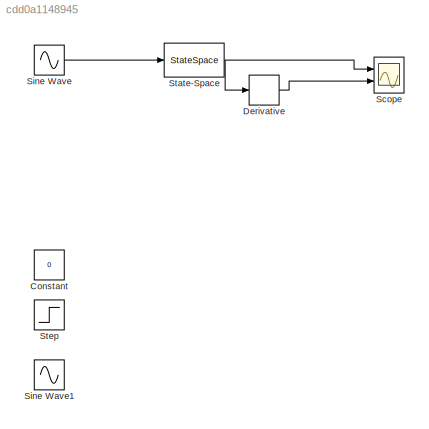
MODEL slx_cdd0a1148945
KIND model
BLOCK [Constant] Constant
  Value = 0
BLOCK [Derivative] Derivative
BLOCK [Scope] Scope
  DataFormat = StructureWithTime
  Floating = off
  LimitDataPoints = off
  NumInputPorts = 2
  Ports = [2]
  SampleTime = 0
  ShowLegends = off
  YMax = 5~5
  YMin = -5~-5
BLOCK [Sin] Sine Wave
  Amplitude = 2
  Phase = pi/2
  Ports = [0, 1]
  SampleTime = 0
BLOCK [Sin] Sine Wave1
  Amplitude = 2
  Frequency = 8*pi
  Phase = pi/2
  Ports = [0, 1]
  SampleTime = 0
BLOCK [StateSpace] State-Space
  A = [0 1; -k/m -b/m]
  B = [0;1/m]
  C = [1 0]
  D = 0
  X0 = [1 0]
BLOCK [Step] Step
  After = 5
  SampleTime = 0
  Time = 0
LINE Derivative:1 -> Scope:2
LINE Sine Wave:1 -> State-Space:1
NET State-Space:1 -> Derivative:1, Scope:1
note: NET lines group one-source signal fan-out (src -> all destinations, sorted); 1:1 wires keep LINE
